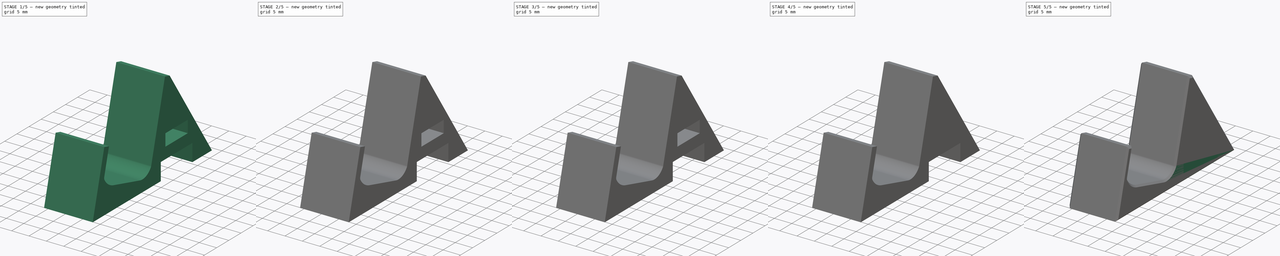
[diagram: build sequence overview — one tinted view per stage of 5, left to right]
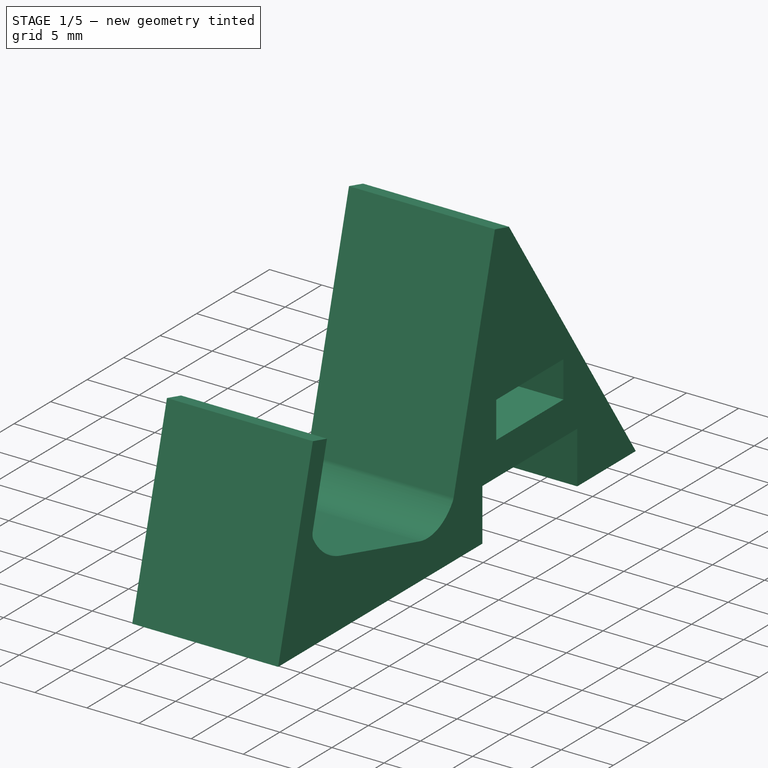
[diagram: stage 1 of 5 — iso view after this stage's code; geometry added in this stage tinted green]
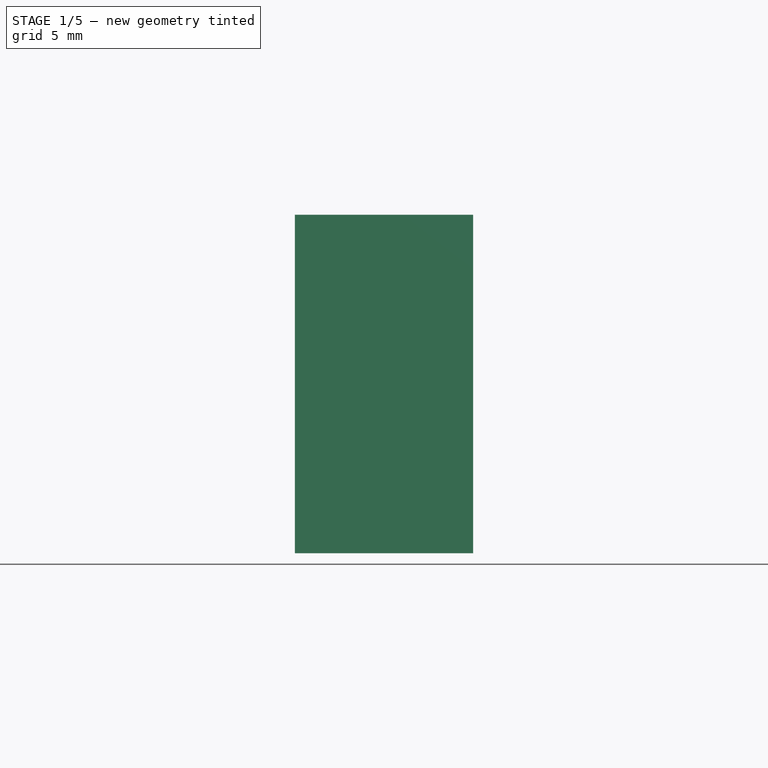
[diagram: stage 1 of 5 — front view after this stage's code; geometry added in this stage tinted green]
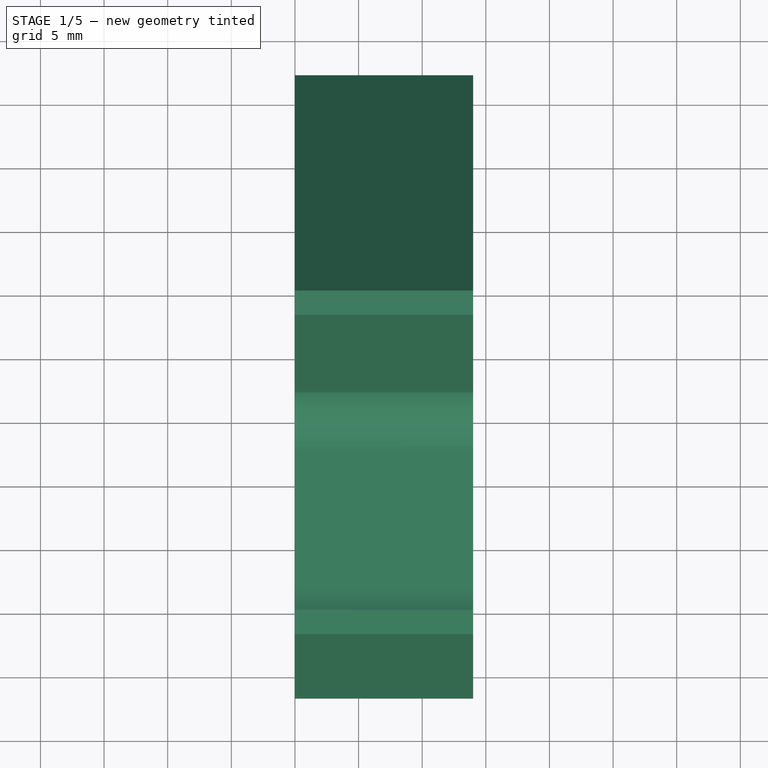
[diagram: stage 1 of 5 — top view after this stage's code; geometry added in this stage tinted green]
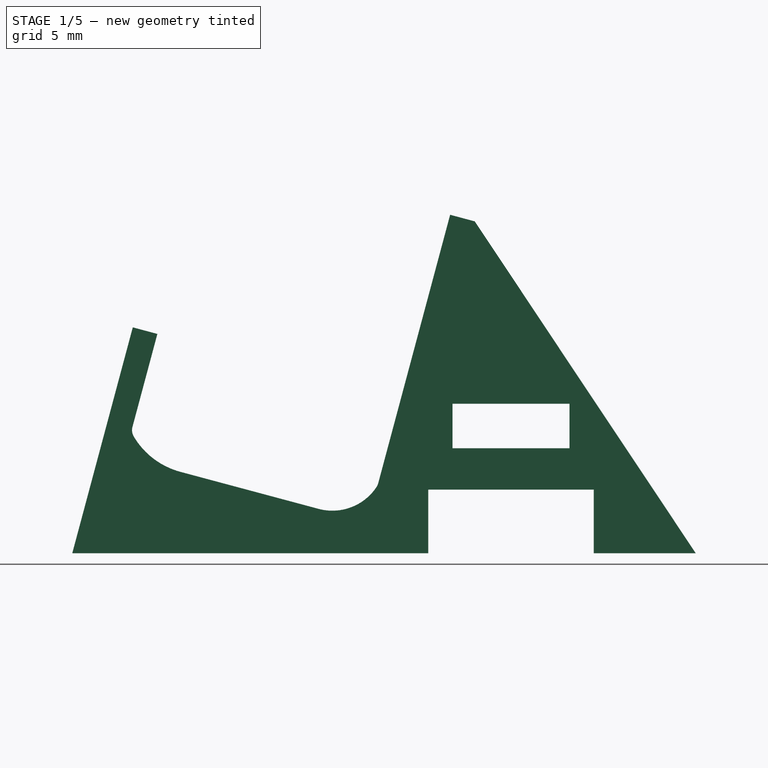
[diagram: stage 1 of 5 — right view after this stage's code; geometry added in this stage tinted green]
FCSTD DOCUMENT  (FreeCAD 1.1R14555 (Git shallow))
Label: PSP Slim Kit
License: All rights reserved
LicenseURL: http://en.wikipedia.org/wiki/All_rights_reserved
objects: Sketcher::SketchObject×15, PartDesign::Pocket×10, PartDesign::Pad×6, App::Point×5, PartDesign::Body×4, Part::Part2DObjectPython×3, PartDesign::FeatureBase×3, PartDesign::Chamfer×3, PartDesign::Fillet×1, Part::DatumPlane×1, PartDesign::Groove×1, PartDesign::SubtractiveHelix×1, App::Part×1
note: 109 computed .brp shape members not serialized (recipe doc carries the construction recipe); baked Part::Feature solids carry a one-line shape summary decoded from their .brp

FEATURE [Sketcher::SketchObject] Sketch004  label="PSP Details"
  ArcFitTolerance = 0
  ExternalTypes = [0]
  FullyConstrained = false
  MakeInternals = false
  Placement = pos=(0.27,39.39,-15) rot=(1,0,0;3.14159rad)
  sketch-geometry (25):
    g0: BSplineCurve PolesCount=2 KnotsCount=2 Degree=1 IsPeriodic=0
    g1: BSplineCurve PolesCount=3 KnotsCount=2 Degree=2 IsPeriodic=0
    g2: BSplineCurve PolesCount=2 KnotsCount=2 Degree=1 IsPeriodic=0
    g3: BSplineCurve PolesCount=3 KnotsCount=2 Degree=2 IsPeriodic=0
    g4: BSplineCurve PolesCount=2 KnotsCount=2 Degree=1 IsPeriodic=0
    g5: BSplineCurve PolesCount=3 KnotsCount=2 Degree=2 IsPeriodic=0
    g6: BSplineCurve PolesCount=2 KnotsCount=2 Degree=1 IsPeriodic=0
    g7: BSplineCurve PolesCount=3 KnotsCount=2 Degree=2 IsPeriodic=0
    g8: BSplineCurve PolesCount=2 KnotsCount=2 Degree=1 IsPeriodic=0
    g9: BSplineCurve PolesCount=3 KnotsCount=2 Degree=2 IsPeriodic=0
    g10: BSplineCurve PolesCount=2 KnotsCount=2 Degree=1 IsPeriodic=0
    g11: BSplineCurve PolesCount=3 KnotsCount=2 Degree=2 IsPeriodic=0
    g12: BSplineCurve PolesCount=2 KnotsCount=2 Degree=1 IsPeriodic=0
    g13: BSplineCurve PolesCount=2 KnotsCount=2 Degree=1 IsPeriodic=0
    g14: BSplineCurve PolesCount=3 KnotsCount=2 Degree=2 IsPeriodic=0
    g15: BSplineCurve PolesCount=2 KnotsCount=2 Degree=1 IsPeriodic=0
    g16: BSplineCurve PolesCount=3 KnotsCount=2 Degree=2 IsPeriodic=0
    g17: BSplineCurve PolesCount=2 KnotsCount=2 Degree=1 IsPeriodic=0
    g18: BSplineCurve PolesCount=3 KnotsCount=2 Degree=2 IsPeriodic=0
    g19: BSplineCurve PolesCount=2 KnotsCount=2 Degree=1 IsPeriodic=0
    g20: BSplineCurve PolesCount=7 KnotsCount=4 Degree=2 IsPeriodic=0
    g21: BSplineCurve PolesCount=2 KnotsCount=2 Degree=1 IsPeriodic=0
    g22: BSplineCurve PolesCount=2 KnotsCount=2 Degree=1 IsPeriodic=0
    g23: BSplineCurve PolesCount=2 KnotsCount=2 Degree=1 IsPeriodic=0
    g24: BSplineCurve PolesCount=2 KnotsCount=2 Degree=1 IsPeriodic=0
  constraints (24):
    c: Coincident(g0,g1)
    c: Coincident(g1,g2)
    c: Coincident(g2,g3)
    c: Coincident(g3,g4)
    c: Coincident(g4,g5)
    c: Coincident(g5,g6)
    c: Coincident(g6,g0)
    c: Coincident(g7,g8)
    c: Coincident(g8,g9)
    c: Coincident(g9,g10)
    c: Coincident(g10,g11)
    c: Coincident(g11,g12)
    c: Coincident(g12,g7)
    c: Coincident(g13,g14)
    c: Coincident(g14,g15)
    c: Coincident(g15,g16)
    c: Coincident(g16,g17)
    c: Coincident(g17,g18)
    c: Coincident(g18,g19)
    c: Coincident(g19,g13)
    c: Coincident(g21,g22)
    c: Coincident(g22,g23)
    c: Coincident(g23,g24)
    c: Coincident(g24,g21)
FEATURE [Sketcher::SketchObject] Sketch003  label="PSP Icon"
  ArcFitTolerance = 0
  ExternalTypes = [0]
  FullyConstrained = false
  MakeInternals = false
  Placement = pos=(0.27,39.39,-15) rot=(1,0,0;3.14159rad)
  sketch-geometry (9):
    g0: BSplineCurve PolesCount=2 KnotsCount=2 Degree=1 IsPeriodic=0
    g1: BSplineCurve PolesCount=3 KnotsCount=2 Degree=2 IsPeriodic=0
    g2: BSplineCurve PolesCount=2 KnotsCount=2 Degree=1 IsPeriodic=0
    g3: BSplineCurve PolesCount=3 KnotsCount=2 Degree=2 IsPeriodic=0
    g4: BSplineCurve PolesCount=2 KnotsCount=2 Degree=1 IsPeriodic=0
    g5: BSplineCurve PolesCount=3 KnotsCount=2 Degree=2 IsPeriodic=0
    g6: BSplineCurve PolesCount=2 KnotsCount=2 Degree=1 IsPeriodic=0
    g7: BSplineCurve PolesCount=3 KnotsCount=2 Degree=2 IsPeriodic=0
    g8: BSplineCurve PolesCount=2 KnotsCount=2 Degree=1 IsPeriodic=0
  constraints (9):
    c: Coincident(g0,g1)
    c: Coincident(g1,g2)
    c: Coincident(g2,g3)
    c: Coincident(g3,g4)
    c: Coincident(g4,g5)
    c: Coincident(g5,g6)
    c: Coincident(g6,g7)
    c: Coincident(g7,g8)
    c: Coincident(g8,g0)
FEATURE [Sketcher::SketchObject] Sketch
  ArcFitTolerance = 0
  AttachmentSupport = -> [YZ_Plane]
  ExternalTypes = [0]
  FullyConstrained = true
  MakeInternals = false
  MapMode = 5
  Placement = pos=(0,0,0) rot=(0.57735,0.57735,0.57735;2.0944rad)
  sketch-geometry (15):
    g0: LineSegment StartX=0 StartY=0 StartZ=0 EndX=0 EndY=12 EndZ=0
    g1: LineSegment StartX=0 StartY=12 StartZ=0 EndX=2 EndY=12 EndZ=0
    g2: LineSegment StartX=2 StartY=12 StartZ=0 EndX=2 EndY=4.04001 EndZ=0
    g3: ArcOfCircle CenterX=6.54995 CenterY=8.094 CenterZ=0 NormalX=0 NormalY=0 NormalZ=1 AngleXU=0 Radius=6.094 StartAngle=3.86941 EndAngle=4.71239
    g4: LineSegment StartX=6.54995 StartY=2 StartZ=0 EndX=17.7999 EndY=2 EndZ=0
    g5: ArcOfCircle CenterX=17.7999 CenterY=6.167 CenterZ=0 NormalX=0 NormalY=0 NormalZ=1 AngleXU=0 Radius=4.167 StartAngle=4.71239 EndAngle=5.99933
    g6: LineSegment StartX=21.8002 StartY=5 StartZ=0 EndX=21.8002 EndY=27 EndZ=0
    g7: LineSegment StartX=21.8002 StartY=27 StartZ=0 EndX=23.8002 EndY=27 EndZ=0
    g8: LineSegment StartX=23.8002 StartY=27 StartZ=0 EndX=23.8002 EndY=0 EndZ=0
    g9: LineSegment StartX=23.8002 StartY=0 StartZ=0 EndX=0 EndY=0 EndZ=0
    g10: LineSegment [constr] StartX=6.54995 StartY=2 StartZ=0 EndX=6.54995 EndY=0 EndZ=0
    g11: LineSegment [constr] StartX=17.7999 StartY=2 StartZ=0 EndX=21.8002 EndY=2 EndZ=0
    g12: LineSegment [constr] StartX=21.8002 StartY=2 StartZ=0 EndX=21.8002 EndY=5 EndZ=0
    g13: LineSegment [constr] StartX=2 StartY=4.04001 StartZ=0 EndX=2 EndY=2.00001 EndZ=0
    g14: LineSegment [constr] StartX=2 StartY=2.00001 StartZ=0 EndX=6.54995 EndY=2 EndZ=0
  constraints (42):
    c: Coincident(g-1,g0)
    c: PointOnObject(g0,g-2)
    c: Coincident(g0,g1)
    c: Horizontal(g1)
    c: Coincident(g1,g2)
    c: Vertical(g2)
    c: Horizontal(g4)
    c: Tangent(g4,g5) = -1.5708
    c: Vertical(g6)
    c: Coincident(g6,g7)
    c: Horizontal(g7)
    c: Coincident(g7,g8)
    c: PointOnObject(g8,g-1)
    c: Vertical(g8)
    c: Coincident(g8,g9)
    c: Coincident(g9,g0)
    c: PointOnObject(g10,g9)
    c: Vertical(g10)
    c: Equal(g1,g10)
    c: Equal(g1,g7)
    c: Distance(g1) = 2
    c: Distance(g2) = 7.96
    c: Distance(g6) = 22
    c: Distance(g4) = 11.25
    c: Tangent(g3,g4) = -1.5708
    c: Coincident(g3,g2)
    c: Radius(g5) = 4.167
    c: Coincident(g5,g6)
    c: Radius(g3) = 6.094
    c: Coincident(g3,g10)
    c: Coincident(g11,g4)
    c: Horizontal(g11)
    c: Coincident(g12,g11)
    c: Coincident(g12,g5)
    c: Vertical(g12)
    c: Distance(g12) = 3
    c: Coincident(g13,g2)
    c: Vertical(g13)
    c: Coincident(g14,g13)
    c: Coincident(g14,g3)
    c: Tangent(g14,g3)
    c: Distance(g13) = 2.04
FEATURE [PartDesign::Pad] Pad
  Direction = (1,0,0)
  Length = 14
  Length2 = 10
  Placement = pos=(0,0,0) rot=(1,1,1;2.0944rad)
  Profile = -> Sketch
  ReferenceAxis = -> Sketch [N_Axis]
  SideType = 0
  Suppressed = false
  Type = 0
  Type2 = 0
FEATURE [Part::Part2DObjectPython] ShapeString  # Draft 2D object (typed FeaturePython)
  FontFile = ../../Font/OpenSans-Regular.ttf
  Fuse = false
  Justification = 6
  JustificationReference = 0
  KeepLeftMargin = true
  MakeFace = true
  ObliqueAngle = 0
  Placement = pos=(12.175,5,6.445) rot=(0,0.707107,0.707107;3.14159rad)
  ScaleToSize = false
  Size = 4
  String = PSPS
  Tracking = 0
FEATURE [Part::Part2DObjectPython] ShapeString001  label="L"  # Draft 2D object (typed FeaturePython)
  FontFile = ../../Font/OpenSans-Regular.ttf
  Fuse = false
  Justification = 6
  JustificationReference = 0
  KeepLeftMargin = true
  MakeFace = true
  ObliqueAngle = 0
  Placement = pos=(3.72,8.22,-16) rot=(1,0,0;3.14159rad)
  ScaleToSize = false
  Size = 10
  String = L
  Tracking = 0
FEATURE [Part::Part2DObjectPython] ShapeString002  label="R"  # Draft 2D object (typed FeaturePython)
  FontFile = ../../Font/OpenSans-Regular.ttf
  Fuse = false
  Justification = 6
  JustificationReference = 0
  KeepLeftMargin = true
  MakeFace = true
  ObliqueAngle = 0
  Placement = pos=(3.15,8.22,-12) rot=(1,0,0;3.14159rad)
  ScaleToSize = false
  Size = 10
  String = R
  Tracking = 0
FEATURE [PartDesign::Pocket] Pocket
  BaseFeature = -> Pad
  Direction = (1e-16,-1,4e-16)
  Length = 0
  Length2 = 5
  Offset = 0.2
  Placement = pos=(0,0,0) rot=(1,1,1;2.0944rad)
  Profile = -> ShapeString
  ReferenceAxis = -> ShapeString [N_Axis]
  SideType = 0
  Suppressed = false
  Type = 3
  Type2 = 0
  UpToFace = -> Pad [Face3]
FEATURE [Sketcher::SketchObject] Sketch006  label="PSP Details001"
  ArcFitTolerance = 0
  ExternalTypes = [0]
  FullyConstrained = false
  MakeInternals = false
  Placement = pos=(0.27,19.38,-15) rot=(1,0,0;3.14159rad)
  sketch-geometry (25):
    g0: BSplineCurve PolesCount=2 KnotsCount=2 Degree=1 IsPeriodic=0
    g1: BSplineCurve PolesCount=3 KnotsCount=2 Degree=2 IsPeriodic=0
    g2: BSplineCurve PolesCount=2 KnotsCount=2 Degree=1 IsPeriodic=0
    g3: BSplineCurve PolesCount=3 KnotsCount=2 Degree=2 IsPeriodic=0
    g4: BSplineCurve PolesCount=2 KnotsCount=2 Degree=1 IsPeriodic=0
    g5: BSplineCurve PolesCount=3 KnotsCount=2 Degree=2 IsPeriodic=0
    g6: BSplineCurve PolesCount=2 KnotsCount=2 Degree=1 IsPeriodic=0
    g7: BSplineCurve PolesCount=3 KnotsCount=2 Degree=2 IsPeriodic=0
    g8: BSplineCurve PolesCount=2 KnotsCount=2 Degree=1 IsPeriodic=0
    g9: BSplineCurve PolesCount=3 KnotsCount=2 Degree=2 IsPeriodic=0
    g10: BSplineCurve PolesCount=2 KnotsCount=2 Degree=1 IsPeriodic=0
    g11: BSplineCurve PolesCount=3 KnotsCount=2 Degree=2 IsPeriodic=0
    g12: BSplineCurve PolesCount=2 KnotsCount=2 Degree=1 IsPeriodic=0
    g13: BSplineCurve PolesCount=2 KnotsCount=2 Degree=1 IsPeriodic=0
    g14: BSplineCurve PolesCount=3 KnotsCount=2 Degree=2 IsPeriodic=0
    g15: BSplineCurve PolesCount=2 KnotsCount=2 Degree=1 IsPeriodic=0
    g16: BSplineCurve PolesCount=3 KnotsCount=2 Degree=2 IsPeriodic=0
    g17: BSplineCurve PolesCount=2 KnotsCount=2 Degree=1 IsPeriodic=0
    g18: BSplineCurve PolesCount=3 KnotsCount=2 Degree=2 IsPeriodic=0
    g19: BSplineCurve PolesCount=2 KnotsCount=2 Degree=1 IsPeriodic=0
    g20: BSplineCurve PolesCount=7 KnotsCount=4 Degree=2 IsPeriodic=0
    g21: BSplineCurve PolesCount=2 KnotsCount=2 Degree=1 IsPeriodic=0
    g22: BSplineCurve PolesCount=2 KnotsCount=2 Degree=1 IsPeriodic=0
    g23: BSplineCurve PolesCount=2 KnotsCount=2 Degree=1 IsPeriodic=0
    g24: BSplineCurve PolesCount=2 KnotsCount=2 Degree=1 IsPeriodic=0
  constraints (24):
    c: Coincident(g0,g1)
    c: Coincident(g1,g2)
    c: Coincident(g2,g3)
    c: Coincident(g3,g4)
    c: Coincident(g4,g5)
    c: Coincident(g5,g6)
    c: Coincident(g6,g0)
    c: Coincident(g7,g8)
    c: Coincident(g8,g9)
    c: Coincident(g9,g10)
    c: Coincident(g10,g11)
    c: Coincident(g11,g12)
    c: Coincident(g12,g7)
    c: Coincident(g13,g14)
    c: Coincident(g14,g15)
    c: Coincident(g15,g16)
    c: Coincident(g16,g17)
    c: Coincident(g17,g18)
    c: Coincident(g18,g19)
    c: Coincident(g19,g13)
    c: Coincident(g21,g22)
    c: Coincident(g22,g23)
    c: Coincident(g23,g24)
    c: Coincident(g24,g21)
FEATURE [Sketcher::SketchObject] Sketch007  label="PSP Icon001"
  ArcFitTolerance = 0
  ExternalTypes = [0]
  FullyConstrained = false
  MakeInternals = false
  Placement = pos=(0.27,19.38,-15) rot=(1,0,0;3.14159rad)
  sketch-geometry (9):
    g0: BSplineCurve PolesCount=2 KnotsCount=2 Degree=1 IsPeriodic=0
    g1: BSplineCurve PolesCount=3 KnotsCount=2 Degree=2 IsPeriodic=0
    g2: BSplineCurve PolesCount=2 KnotsCount=2 Degree=1 IsPeriodic=0
    g3: BSplineCurve PolesCount=3 KnotsCount=2 Degree=2 IsPeriodic=0
    g4: BSplineCurve PolesCount=2 KnotsCount=2 Degree=1 IsPeriodic=0
    g5: BSplineCurve PolesCount=3 KnotsCount=2 Degree=2 IsPeriodic=0
    g6: BSplineCurve PolesCount=2 KnotsCount=2 Degree=1 IsPeriodic=0
    g7: BSplineCurve PolesCount=3 KnotsCount=2 Degree=2 IsPeriodic=0
    g8: BSplineCurve PolesCount=2 KnotsCount=2 Degree=1 IsPeriodic=0
  constraints (9):
    c: Coincident(g0,g1)
    c: Coincident(g1,g2)
    c: Coincident(g2,g3)
    c: Coincident(g3,g4)
    c: Coincident(g4,g5)
    c: Coincident(g5,g6)
    c: Coincident(g6,g7)
    c: Coincident(g7,g8)
    c: Coincident(g8,g0)
FEATURE [PartDesign::Fillet] Fillet
  Base = -> Pocket [Edge123,Edge26]
  BaseFeature = -> Pocket
  Placement = pos=(0,0,0) rot=(1,1,1;2.0944rad)
  Radius = 1
  SupportTransform = false
  Suppressed = false
  UseAllEdges = false
FEATURE [PartDesign::Body] Body  label="Profile"
  AllowCompound = false
  Group = -> [Sketch,Pad,ShapeString,Pocket,Fillet]
  Origin = -> Origin
  Tip = -> Fillet
FEATURE [PartDesign::FeatureBase] Clone
  BaseFeature = -> Body
  Placement = pos=(0,0,0) rot=(-1,0,0;0.261799rad)
  Suppressed = false
FEATURE [Sketcher::SketchObject] Sketch005
  ArcFitTolerance = 0
  AttachmentSupport = -> [Clone]
  ExternalGeometry = -> [Clone]
  ExternalTypes = [0]
  FullyConstrained = true
  MakeInternals = false
  MapMode = 5
  Placement = pos=(14,-6.4e-15,1e-16) rot=(0.519988,0.677661,0.519988;1.95044rad)
  sketch-geometry (19):
    g0: LineSegment StartX=23.8002 StartY=27 StartZ=0 EndX=47.3262 EndY=6.30378 EndZ=0
    g1: LineSegment StartX=47.3262 StartY=6.30378 StartZ=0 EndX=39.5832 EndY=4.22904 EndZ=0
    g2: LineSegment StartX=39.5832 StartY=4.22904 StartZ=0 EndX=38.2891 EndY=9.05867 EndZ=0
    g3: LineSegment StartX=38.2891 StartY=9.05867 StartZ=0 EndX=25.732 EndY=5.69402 EndZ=0
    g4: LineSegment StartX=25.732 StartY=5.69402 StartZ=0 EndX=27.0261 EndY=0.86439 EndZ=0
    g5: LineSegment StartX=27.0261 StartY=0.86439 StartZ=0 EndX=0 EndY=-6.37724 EndZ=0
    g6: LineSegment StartX=0 StartY=-6.37724 StartZ=0 EndX=6.3e-15 EndY=2 EndZ=0
    g7: LineSegment StartX=6.3e-15 StartY=2 StartZ=0 EndX=23.8002 EndY=2 EndZ=0
    g8: LineSegment StartX=23.8002 StartY=2 StartZ=0 EndX=23.8002 EndY=27 EndZ=0
    g9: LineSegment StartX=26.7261 StartY=9.32503 StartZ=0 EndX=35.6127 EndY=11.7062 EndZ=0
    g10: LineSegment StartX=35.6127 StartY=11.7062 StartZ=0 EndX=34.7068 EndY=15.0869 EndZ=0
    g11: LineSegment StartX=34.7068 StartY=15.0869 StartZ=0 EndX=25.8203 EndY=12.7058 EndZ=0
    g12: LineSegment StartX=25.8203 StartY=12.7058 StartZ=0 EndX=26.7261 EndY=9.32503 EndZ=0
    g13: LineSegment [constr] StartX=31.1694 StartY=10.5156 StartZ=0 EndX=32.0106 EndY=7.37634 EndZ=0
    g14: LineSegment [constr] StartX=25.732 StartY=5.69402 StartZ=0 EndX=23.8002 EndY=5.17638 EndZ=0
    g15: LineSegment [constr] StartX=38.2891 StartY=9.05867 StartZ=0 EndX=42.8159 EndY=10.2716 EndZ=0
    g16: LineSegment [constr] StartX=27.0261 StartY=0.86439 StartZ=0 EndX=39.5832 EndY=4.22904 EndZ=0
    g17: LineSegment [constr] StartX=34.7068 StartY=15.0869 StartZ=0 EndX=36.7269 EndY=15.6282 EndZ=0
    g18: LineSegment [constr] StartX=25.8203 StartY=12.7058 StartZ=0 EndX=23.8002 EndY=12.1645 EndZ=0
  constraints (54):
    c: Coincident(g0,g1)
    c: Coincident(g1,g2)
    c: Coincident(g2,g3)
    c: Coincident(g3,g4)
    c: Coincident(g4,g5)
    c: PointOnObject(g5,g-2)
    c: Coincident(g5,g6)
    c: Coincident(g6,g7)
    c: Horizontal(g7)
    c: Coincident(g7,g8)
    c: Coincident(g8,g0)
    c: Coincident(g9,g10)
    c: Coincident(g10,g11)
    c: Coincident(g11,g12)
    c: Coincident(g12,g9)
    c: Coincident(g14,g3)
    c: PointOnObject(g14,g8)
    c: Coincident(g15,g2)
    c: PointOnObject(g15,g0)
    c: Coincident(g16,g4)
    c: Coincident(g16,g1)
    c: Coincident(g17,g10)
    c: PointOnObject(g17,g0)
    c: Coincident(g18,g11)
    c: PointOnObject(g18,g8)
    c: Angle(g5,g6) = 1.309
    c: Parallel(g5,g16)
    c: Parallel(g16,g3)
    c: Parallel(g1,g16)
    c: Parallel(g9,g11)
    c: Parallel(g9,g3)
    c: Parallel(g3,g14)
    c: Parallel(g15,g3)
    c: Parallel(g11,g17)
    c: Parallel(g18,g11)
    c: Perpendicular(g9,g12)
    c: Perpendicular(g10,g9)
    c: Perpendicular(g3,g13)
    c: Perpendicular(g4,g5)
    c: Perpendicular(g2,g16)
    c: Symmetric(g3,g2,g13)
    c: Symmetric(g9,g9,g13)
    c: Distance(g3) = 13
    c: Distance(g2) = 5
    c: Distance(g13) = 3.25
    c: Distance(g10) = 3.5
    c: Distance(g11) = 9.2
    c: Equal(g17,g18)
    c: Distance(g14) = 2
    c: PointOnObject(g6,g-5)
    c: PointOnObject(g-4,g7)
    c: PointOnObject(g-3,g5)
    c: Coincident(g0,g-3)
    c: PointOnObject(g7,g-3)
FEATURE [PartDesign::Pad] Pad001
  BaseFeature = -> Clone
  Direction = (1,-1e-16,1e-16)
  Length = 14
  Length2 = 10
  Placement = pos=(0,0,0) rot=(-1,0,0;0.261799rad)
  Profile = -> Sketch005
  ReferenceAxis = -> Sketch005 [N_Axis]
  Refine = true
  Reversed = true
  SideType = 0
  Suppressed = false
  Type = 0
  Type2 = 0
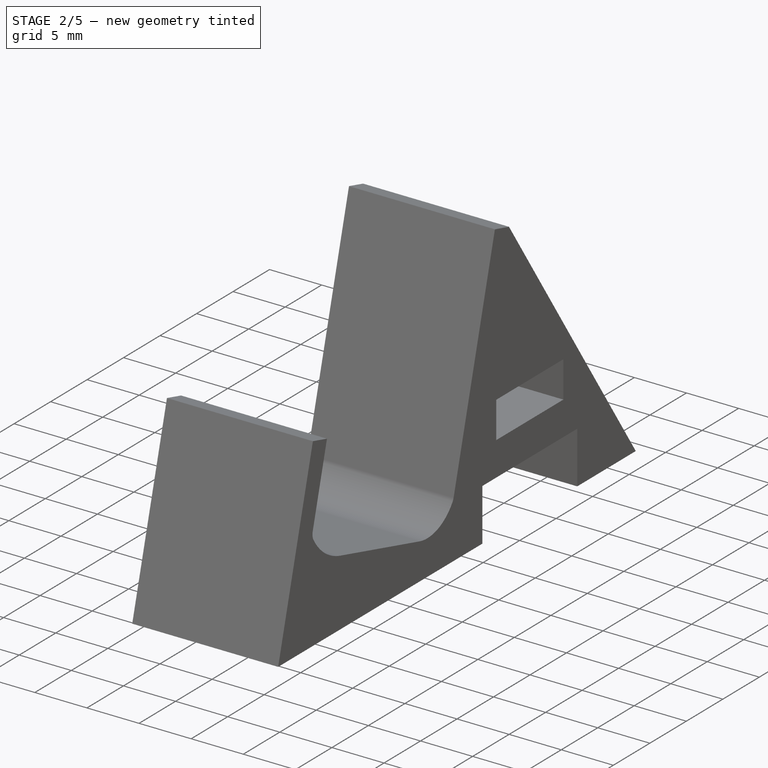
[diagram: stage 2 of 5 — iso view after this stage's code; geometry added in this stage tinted green]
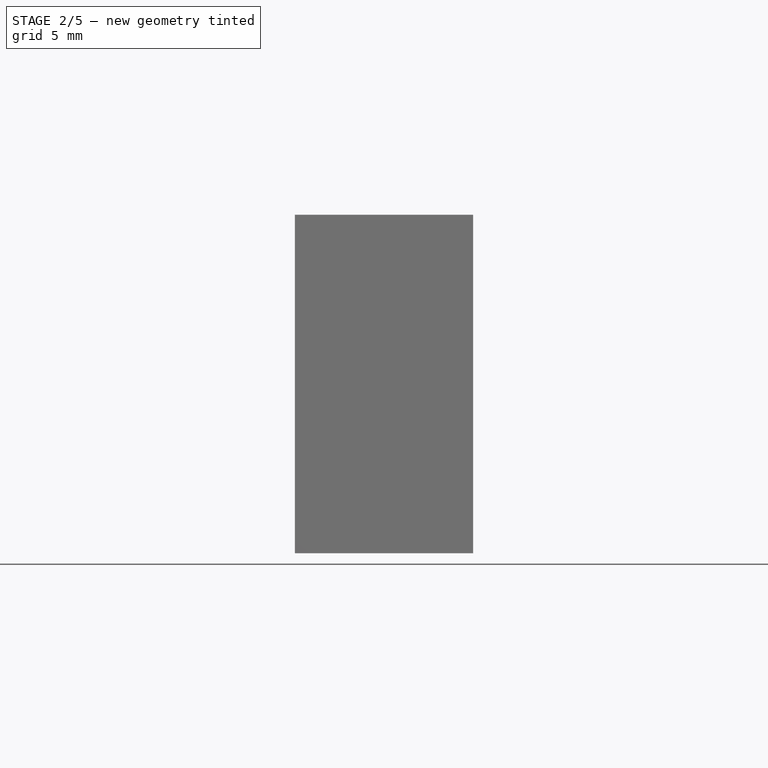
[diagram: stage 2 of 5 — front view after this stage's code; geometry added in this stage tinted green]
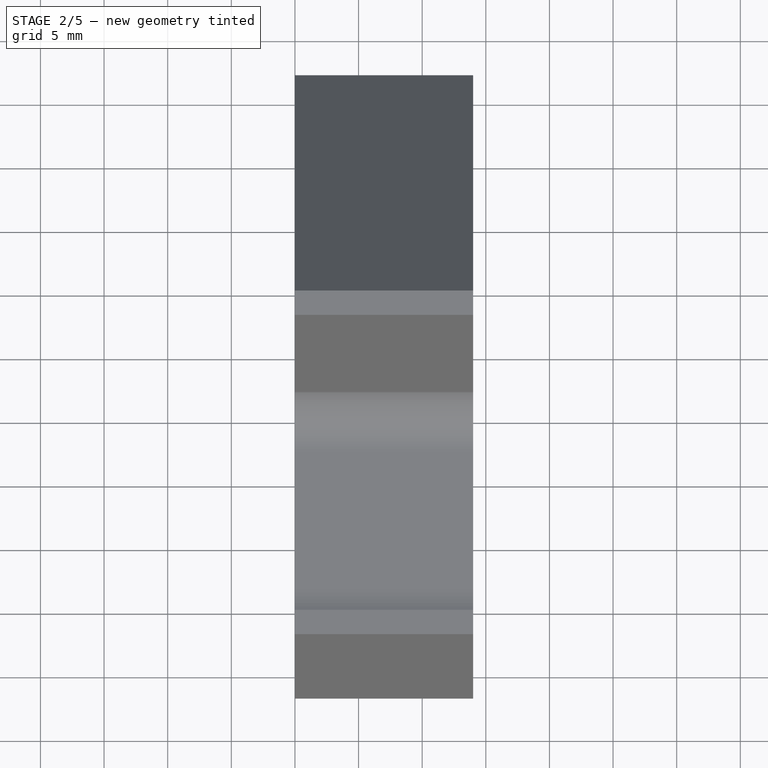
[diagram: stage 2 of 5 — top view after this stage's code; geometry added in this stage tinted green]
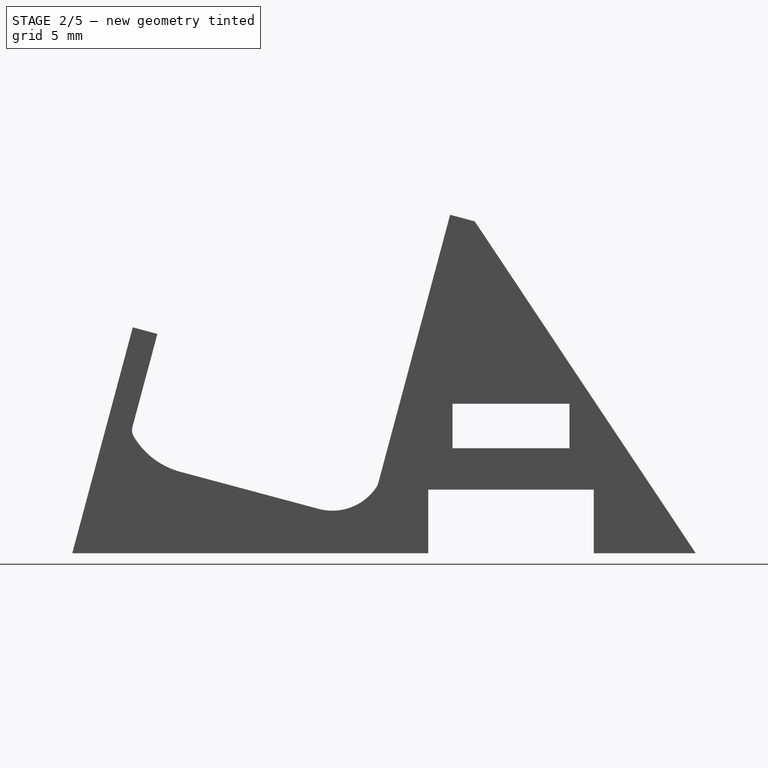
[diagram: stage 2 of 5 — right view after this stage's code; geometry added in this stage tinted green]
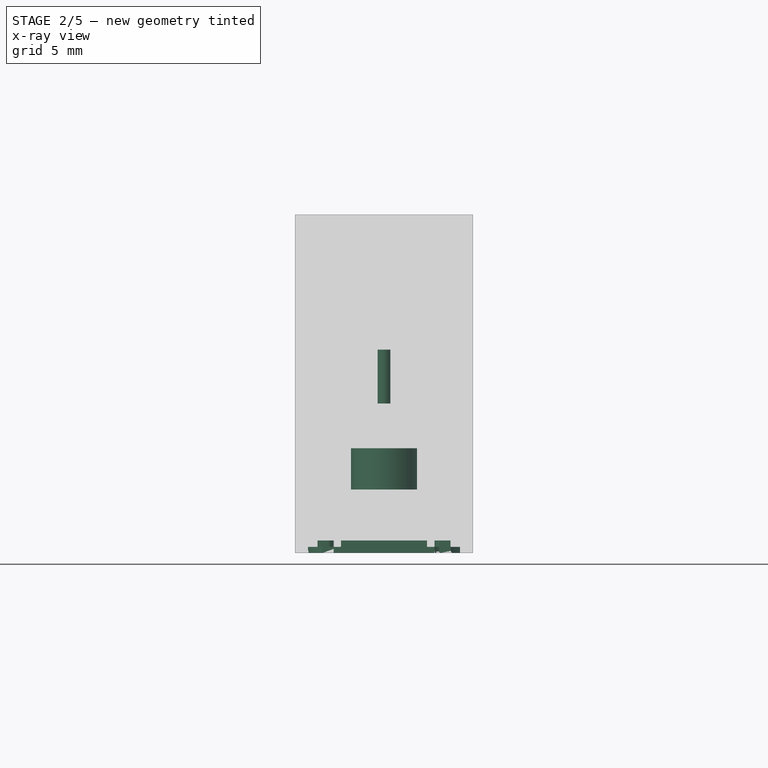
[diagram: stage 2 of 5 — x-ray composite at the front view; earlier geometry ghosted, this stage's added geometry solid]
FEATURE [PartDesign::FeatureBase] Clone001
  BaseFeature = -> Pad001
  Placement = pos=(0,0,0) rot=(-1,0,0;0.261799rad)
  Suppressed = false
FEATURE [Sketcher::SketchObject] Sketch009
  ArcFitTolerance = 0
  AttachmentSupport = -> [Clone001]
  ExternalGeometry = -> [Clone001]
  ExternalTypes = [0]
  FullyConstrained = true
  MakeInternals = false
  MapMode = 5
  Placement = pos=(1e-16,-1e-15,-1.15994) rot=(1,0,0;3.14159rad)
  sketch-geometry (1):
    g0: Circle CenterX=7 CenterY=-32.829 CenterZ=0 NormalX=0 NormalY=0 NormalZ=1 AngleXU=0 Radius=0.5
  constraints (2):
    c: Symmetric(g-3,g-4,g0)
    c: Diameter(g0) = 1
FEATURE [PartDesign::Pocket] Pocket003
  BaseFeature = -> Clone001
  Direction = (0,0,1)
  Length = 11
  Length2 = 5
  Placement = pos=(0,0,0) rot=(-1,0,0;0.261799rad)
  Profile = -> Sketch009
  ReferenceAxis = -> Sketch009 [N_Axis]
  SideType = 0
  Suppressed = false
  Type = 0
  Type2 = 0
FEATURE [PartDesign::Pocket] Pocket004
  BaseFeature = -> Pocket003
  Direction = (0,1e-16,1)
  Length = 0
  Length2 = 5
  Offset = 0.5
  Placement = pos=(0,0,0) rot=(-1,0,0;0.261799rad)
  Profile = -> Sketch007
  ReferenceAxis = -> Sketch007 [N_Axis]
  SideType = 0
  Suppressed = false
  Type = 3
  Type2 = 0
  UpToFace = -> Pocket003 [Face16]
FEATURE [PartDesign::Pocket] Pocket005
  BaseFeature = -> Pocket004
  Direction = (0,1e-16,1)
  Length = 0
  Length2 = 5
  Offset = 0.5
  Placement = pos=(0,0,0) rot=(-1,0,0;0.261799rad)
  Profile = -> Sketch006
  ReferenceAxis = -> Sketch006 [N_Axis]
  Refine = true
  SideType = 0
  Suppressed = false
  Type = 3
  Type2 = 0
  UpToFace = -> Pocket004 [Face131]
FEATURE [PartDesign::Body] Body001  label="Stand"
  AllowCompound = false
  Group = -> [Clone,Sketch005,Pad001,Sketch004,Sketch003,Sketch008,Pad002,Pocket001,Pocket002,Chamfer]
  Origin = -> Origin001
  Placement = pos=(50,0,0) rot=(0,0,1;0rad)
  Tip = -> Chamfer
FEATURE [Sketcher::SketchObject] Sketch012
  ArcFitTolerance = 1e-06
  AttachmentSupport = -> [Pocket005]
  ExternalGeometry = -> [Pocket005]
  ExternalTypes = [0]
  FullyConstrained = true
  MakeInternals = false
  MapMode = 5
  Placement = pos=(1e-16,-1e-15,-1.15994) rot=(1,0,0;3.14159rad)
  sketch-geometry (1):
    g0: Circle CenterX=7 CenterY=-32.829 CenterZ=0 NormalX=0 NormalY=0 NormalZ=1 AngleXU=0 Radius=2.6
  constraints (2):
    c: Diameter(g0) = 5.2
    c: Coincident(g0,g-3)
FEATURE [PartDesign::Pocket] Pocket008
  BaseFeature = -> Pocket005
  Direction = (0,0,1)
  Length = 5
  Length2 = 5
  Placement = pos=(0,0,0) rot=(-1,0,0;0.261799rad)
  Profile = -> Sketch012
  ReferenceAxis = -> Sketch012 [N_Axis]
  Refine = true
  SideType = 0
  Suppressed = false
  Type = 0
  Type2 = 0
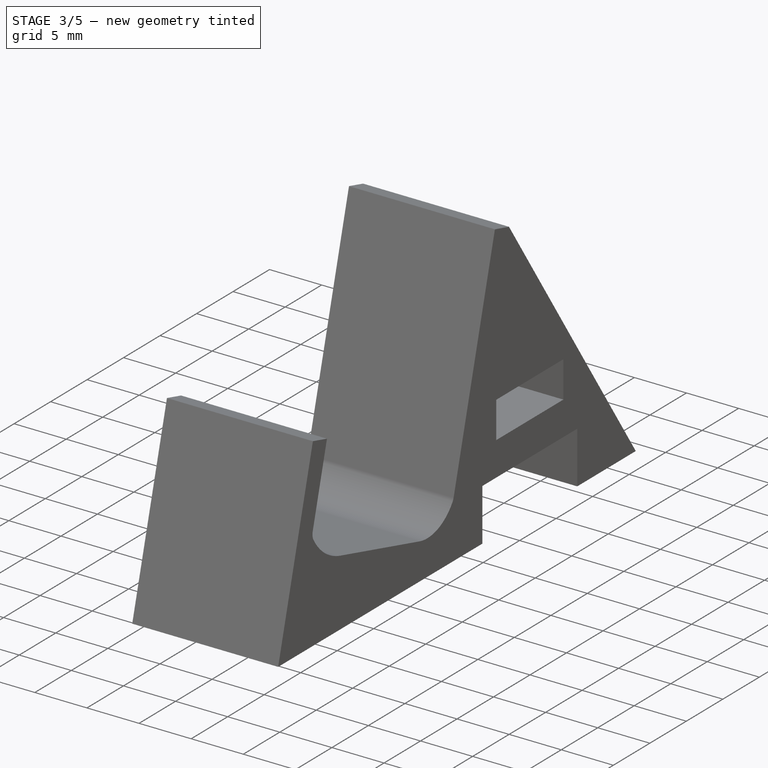
[diagram: stage 3 of 5 — iso view after this stage's code; geometry added in this stage tinted green]
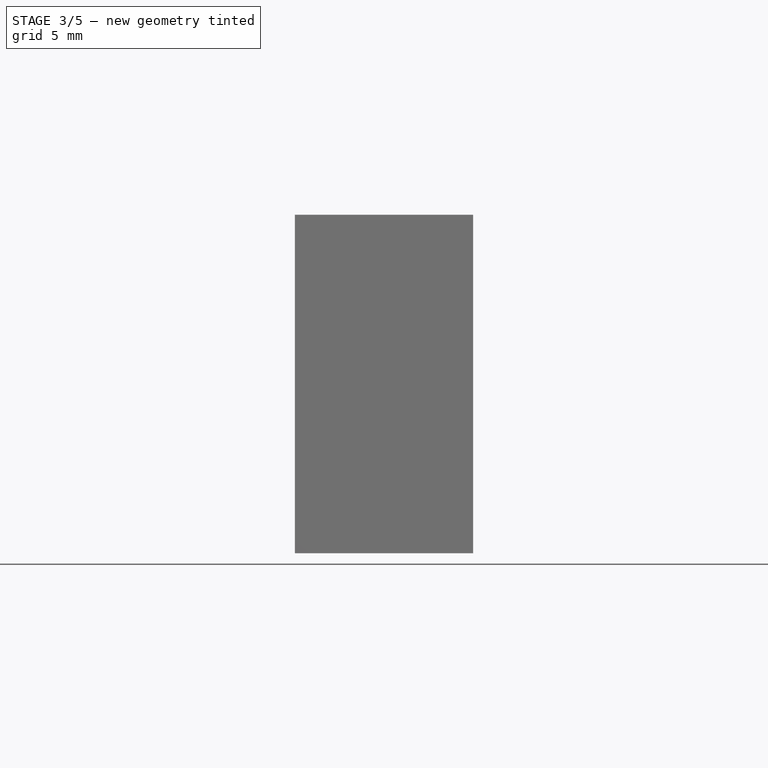
[diagram: stage 3 of 5 — front view after this stage's code; geometry added in this stage tinted green]
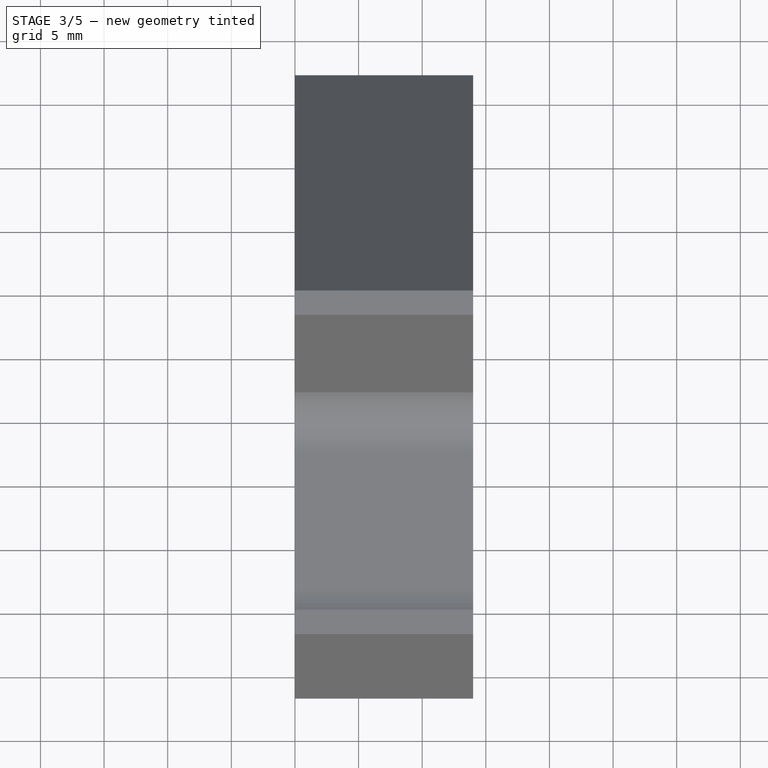
[diagram: stage 3 of 5 — top view after this stage's code; geometry added in this stage tinted green]
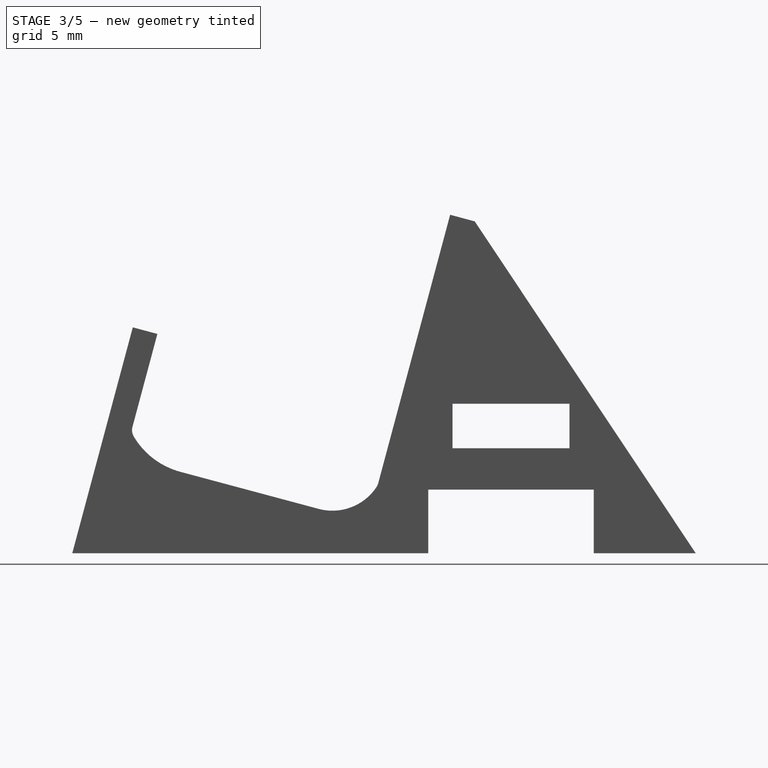
[diagram: stage 3 of 5 — right view after this stage's code; geometry added in this stage tinted green]
FEATURE [Part::DatumPlane] DatumPlane
  AttachmentOffset = pos=(0,0,0) rot=(1,0,0;1.5708rad)
  AttachmentSupport = -> [Pocket008]
  MapMode = 45
  Placement = pos=(7,32.829,5.61597) rot=(0.57735,0.57735,0.57735;2.0944rad)
FEATURE [Sketcher::SketchObject] Sketch013
  ArcFitTolerance = 1e-06
  AttachmentSupport = -> [DatumPlane]
  ExternalGeometry = -> [Pocket008]
  ExternalTypes = [0]
  FullyConstrained = true
  MakeInternals = false
  MapMode = 5
  Placement = pos=(7,32.829,5.61597) rot=(0.57735,0.57735,0.57735;2.0944rad)
  sketch-geometry (9):
    g0: LineSegment [constr] StartX=0 StartY=4.22408 StartZ=0 EndX=0 EndY=5.82408 EndZ=0
    g1: LineSegment [constr] StartX=0 StartY=4.22408 StartZ=0 EndX=2.2 EndY=4.22408 EndZ=0
    g2: LineSegment [constr] StartX=0 StartY=5.82408 StartZ=0 EndX=2.2 EndY=5.82408 EndZ=0
    g3: LineSegment [constr] StartX=2.2 StartY=4.22408 StartZ=0 EndX=2.2 EndY=4.72408 EndZ=0
    g4: LineSegment StartX=2.2 StartY=5.82408 StartZ=0 EndX=2.2 EndY=4.72408 EndZ=0
    g5: LineSegment StartX=2.2 StartY=4.72408 StartZ=0 EndX=2.6 EndY=5.12408 EndZ=0
    g6: LineSegment StartX=2.6 StartY=5.12408 StartZ=0 EndX=2.6 EndY=5.42408 EndZ=0
    g7: LineSegment StartX=2.6 StartY=5.42408 StartZ=0 EndX=2.2 EndY=5.82408 EndZ=0
    g8: LineSegment [constr] StartX=2.6 StartY=5.42408 StartZ=0 EndX=0 EndY=5.42408 EndZ=0
  constraints (25):
    c: Distance(g0) = 1.6
    c: Symmetric(g-3,g-3,g0)
    c: PointOnObject(g0,g-2)
    c: Coincident(g1,g0)
    c: Horizontal(g1)
    c: Coincident(g2,g0)
    c: Horizontal(g2)
    c: Distance(g3) = 0.5
    c: Coincident(g3,g1)
    c: Vertical(g3)
    c: Coincident(g4,g2)
    c: Coincident(g4,g3)
    c: Coincident(g5,g3)
    c: Distance(g6) = 0.3
    c: Coincident(g6,g5)
    c: Coincident(g7,g6)
    c: Coincident(g7,g2)
    c: Vertical(g4)
    c: Vertical(g6)
    c: Equal(g7,g5)
    c: Distance(g8) = 2.6
    c: Coincident(g8,g6)
    c: PointOnObject(g8,g0)
    c: Horizontal(g8)
    c: DistanceX(g7,g7) = 0.4
FEATURE [Sketcher::SketchObject] Sketch014
  ArcFitTolerance = 1e-06
  AttachmentSupport = -> [DatumPlane]
  ExternalGeometry = -> [Pocket008,Sketch013]
  ExternalTypes = [0,0]
  FullyConstrained = true
  MakeInternals = false
  MapMode = 5
  Placement = pos=(7,32.829,5.61597) rot=(0.57735,0.57735,0.57735;2.0944rad)
  sketch-geometry (5):
    g0: LineSegment StartX=-1.42e-14 StartY=-0.0259157 StartZ=0 EndX=0 EndY=0.474084 EndZ=0
    g1: LineSegment StartX=0 StartY=0.474084 StartZ=0 EndX=2.6 EndY=0.474084 EndZ=0
    g2: LineSegment StartX=2.6 StartY=0.474084 StartZ=0 EndX=3.1 EndY=-0.0259157 EndZ=0
    g3: LineSegment StartX=3.1 StartY=-0.0259157 StartZ=0 EndX=-1.42e-14 EndY=-0.0259157 EndZ=0
    g4: LineSegment [constr] StartX=2.6 StartY=5.12408 StartZ=0 EndX=2.6 EndY=0.474084 EndZ=0
  constraints (13):
    c: Distance(g0) = 0.5
    c: Coincident(g1,g0)
    c: Horizontal(g1)
    c: Coincident(g2,g1)
    c: Coincident(g3,g2)
    c: Coincident(g3,g0)
    c: Horizontal(g3)
    c: DistanceX(g2,g2) = 0.5
    c: Coincident(g4,g-4)
    c: Coincident(g4,g1)
    c: Vertical(g4)
    c: Symmetric(g-3,g-3,g0)
    c: PointOnObject(g0,g-2)
FEATURE [Sketcher::SketchObject] Sketch015
  ArcFitTolerance = 1e-06
  AttachmentSupport = -> [Pocket008]
  ExternalGeometry = -> [Pocket008,Sketch013]
  ExternalTypes = [0,0]
  FullyConstrained = true
  MakeInternals = false
  MapMode = 5
  Placement = pos=(0,0,9.84006) rot=(1,0,0;3.14159rad)
  sketch-geometry (1):
    g0: Circle CenterX=7 CenterY=-32.829 CenterZ=0 NormalX=0 NormalY=0 NormalZ=1 AngleXU=0 Radius=2.2
  constraints (2):
    c: Coincident(g0,g-3)
    c: PointOnObject(g-4,g0)
FEATURE [Sketcher::SketchObject] Sketch016
  ArcFitTolerance = 1e-06
  AttachmentSupport = -> [Pocket008]
  ExternalGeometry = -> [Pocket008,Sketch013]
  ExternalTypes = [0,0]
  FullyConstrained = true
  MakeInternals = false
  MapMode = 5
  Placement = pos=(0,0,9.84006) rot=(1,0,0;3.14159rad)
  sketch-geometry (1):
    g0: Circle CenterX=7 CenterY=-32.829 CenterZ=0 NormalX=0 NormalY=0 NormalZ=1 AngleXU=0 Radius=2.6
  constraints (2):
    c: Coincident(g0,g-3)
    c: PointOnObject(g-4,g0)
FEATURE [PartDesign::Groove] Groove
  Angle = 360
  Angle2 = 60
  Axis = (1e-16,-3.9e-15,1)
  Base = (7,32.829,5.61597)
  BaseFeature = -> Pocket008
  Placement = pos=(0,0,0) rot=(-1,0,0;0.261799rad)
  Profile = -> Sketch014
  ReferenceAxis = -> Sketch014 [V_Axis]
  Refine = true
  Suppressed = false
  Type = 0
FEATURE [PartDesign::Pocket] Pocket009
  BaseFeature = -> Groove
  Direction = (0,0,1)
  Length = 8
  Length2 = 5
  Placement = pos=(0,0,0) rot=(-1,0,0;0.261799rad)
  Profile = -> Sketch015
  ReferenceAxis = -> Sketch015 [N_Axis]
  Refine = true
  Reversed = true
  SideType = 0
  Suppressed = false
  Type = 0
  Type2 = 0
FEATURE [PartDesign::SubtractiveHelix] SubtractiveHelix
  Angle = 0
  Axis = (1e-16,-3.9e-15,1)
  Base = (7,32.829,5.61597)
  BaseFeature = -> Pocket009
  Growth = 0
  HasBeenEdited = true
  Height = 8
  LeftHanded = false
  Mode = 0
  Outside = false
  Pitch = 1.6
  Placement = pos=(0,0,0) rot=(-1,0,0;0.261799rad)
  Profile = -> Sketch013
  ReferenceAxis = -> Sketch013 [V_Axis]
  Refine = true
  Reversed = true
  Suppressed = false
  Tolerance = 0.1
  Turns = 5
FEATURE [PartDesign::Pad] Pad005
  BaseFeature = -> SubtractiveHelix
  Direction = (0,0,-1)
  Length = 1.6
  Length2 = 10
  Placement = pos=(0,0,0) rot=(-1,0,0;0.261799rad)
  Profile = -> Sketch016
  ReferenceAxis = -> Sketch016 [N_Axis]
  Refine = true
  Reversed = true
  SideType = 0
  Suppressed = false
  Type = 0
  Type2 = 0
FEATURE [PartDesign::FeatureBase] Clone002
  BaseFeature = -> Pad005
  Placement = pos=(0,0,0) rot=(-1,0,0;0.261799rad)
  Suppressed = false
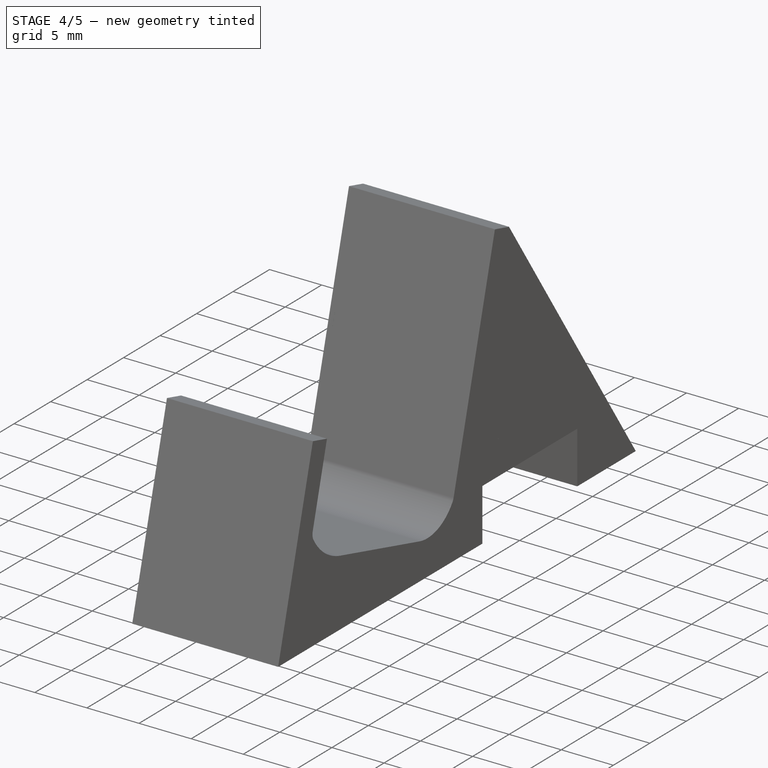
[diagram: stage 4 of 5 — iso view after this stage's code; geometry added in this stage tinted green]
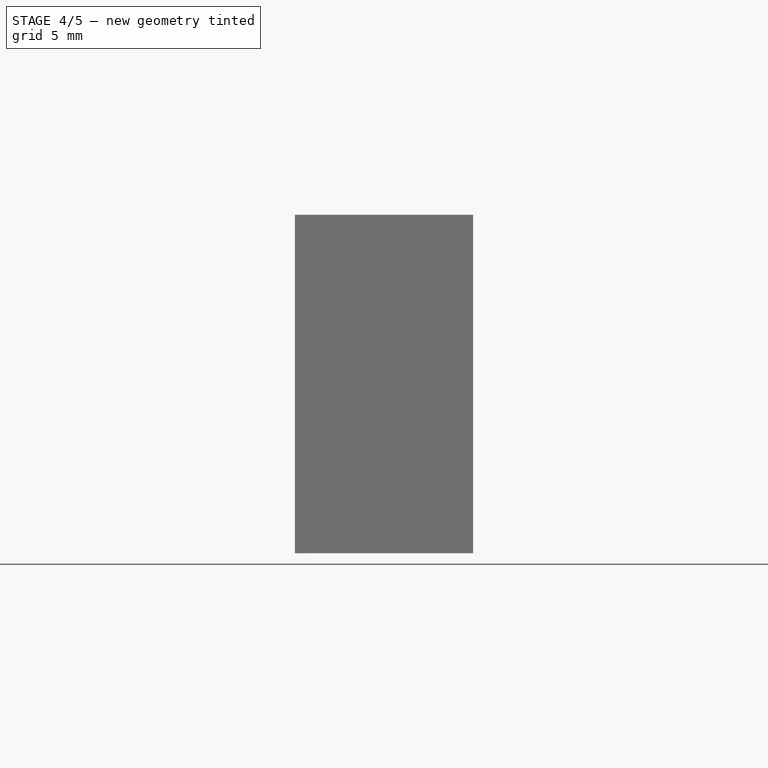
[diagram: stage 4 of 5 — front view after this stage's code; geometry added in this stage tinted green]
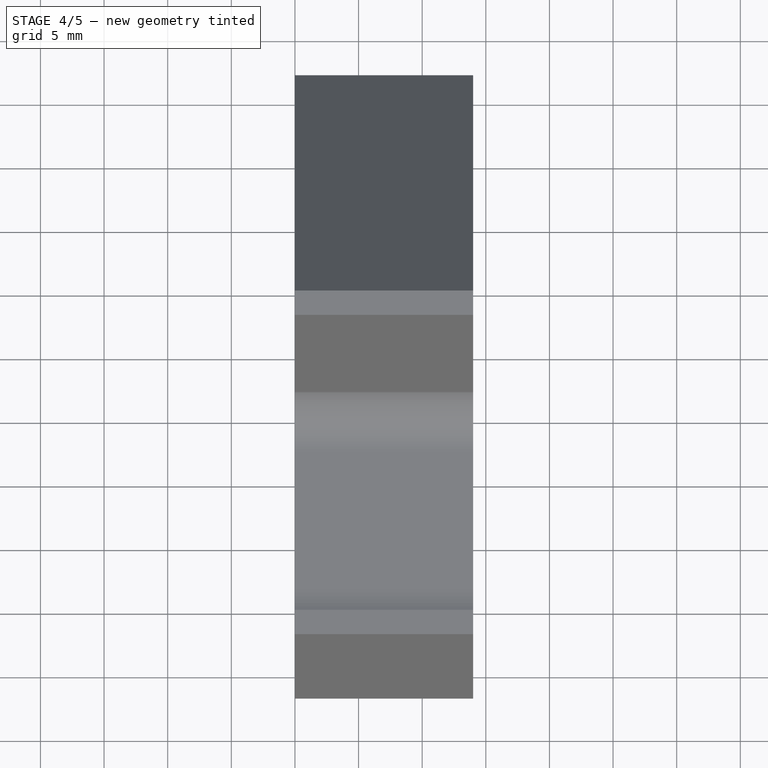
[diagram: stage 4 of 5 — top view after this stage's code; geometry added in this stage tinted green]
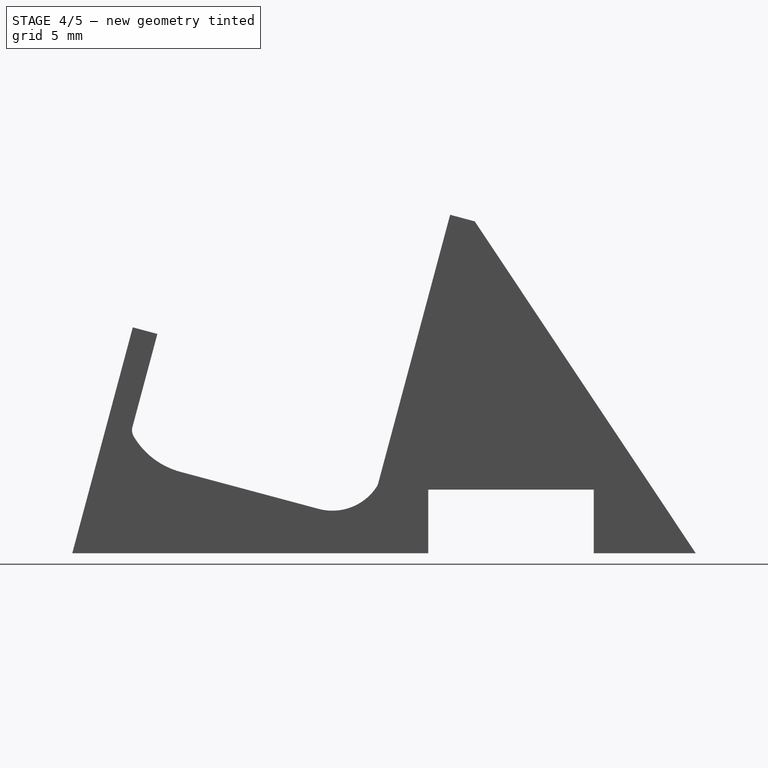
[diagram: stage 4 of 5 — right view after this stage's code; geometry added in this stage tinted green]
FEATURE [Sketcher::SketchObject] Sketch011
  ArcFitTolerance = 0
  AttachmentSupport = -> [Clone002]
  ExternalGeometry = -> [Clone002]
  ExternalTypes = [0]
  FullyConstrained = true
  MakeInternals = false
  MapMode = 5
  Placement = pos=(14,8e-16,3.2e-15) rot=(0.519988,0.677661,0.519988;1.95044rad)
  sketch-geometry (4):
    g0: LineSegment StartX=25.8203 StartY=12.7058 StartZ=0 EndX=34.7068 EndY=15.0869 EndZ=0
    g1: LineSegment StartX=34.7068 StartY=15.0869 StartZ=0 EndX=35.6127 EndY=11.7062 EndZ=0
    g2: LineSegment StartX=35.6127 StartY=11.7062 StartZ=0 EndX=26.7261 EndY=9.32503 EndZ=0
    g3: LineSegment StartX=26.7261 StartY=9.32503 StartZ=0 EndX=25.8203 EndY=12.7058 EndZ=0
  constraints (8):
    c: Coincident(g-3,g0)
    c: Coincident(g0,g-4)
    c: Coincident(g0,g1)
    c: Coincident(g1,g-4)
    c: Coincident(g1,g2)
    c: Coincident(g2,g-3)
    c: Coincident(g2,g3)
    c: Coincident(g3,g0)
FEATURE [PartDesign::Pad] Pad004
  BaseFeature = -> Clone002
  Direction = (1,-1e-16,1e-16)
  Length = 2
  Length2 = 10
  Placement = pos=(0,0,0) rot=(-1,0,0;0.261799rad)
  Profile = -> Sketch011
  ReferenceAxis = -> Sketch011 [N_Axis]
  Refine = true
  Reversed = true
  SideType = 0
  Suppressed = false
  Type = 0
  Type2 = 0
FEATURE [PartDesign::Pocket] Pocket007
  BaseFeature = -> Pad004
  Direction = (0,1e-16,1)
  Length = 0
  Length2 = 5
  Offset = 0.5
  Placement = pos=(0,0,0) rot=(-1,0,0;0.261799rad)
  Profile = -> ShapeString002
  ReferenceAxis = -> ShapeString002 [N_Axis]
  SideType = 0
  Suppressed = false
  Type = 3
  Type2 = 0
  UpToFace = -> Pad004 [Face15]
FEATURE [PartDesign::Pad] Pad006
  BaseFeature = -> Pad005
  Direction = (-1,0,0)
  Length = 2
  Length2 = 10
  Placement = pos=(0,0,0) rot=(-1,0,0;0.261799rad)
  Profile = -> Sketch010
  ReferenceAxis = -> Sketch010 [N_Axis]
  Refine = true
  Reversed = true
  SideType = 0
  Suppressed = false
  Type = 0
  Type2 = 0
FEATURE [PartDesign::Pocket] Pocket010
  BaseFeature = -> Pad006
  Direction = (0,1e-16,1)
  Length = 5
  Length2 = 5
  Offset = 0.5
  Placement = pos=(0,0,0) rot=(-1,0,0;0.261799rad)
  Profile = -> ShapeString001
  ReferenceAxis = -> ShapeString001 [N_Axis]
  Refine = true
  SideType = 0
  Suppressed = false
  Type = 3
  Type2 = 0
  UpToFace = -> Pad006 [Face15]
FEATURE [PartDesign::Body] Body002  label="Kit Left"
  AllowCompound = false
  Group = -> [Clone001,Sketch006,Sketch007,ShapeString001,Sketch009,Pocket003,Pocket004,Pocket005,Sketch010,Sketch012,Pocket008,DatumPlane,Sketch013,Sketch014,Sketch015,Sketch016,Groove,Pocket009,SubtractiveHelix,Pad005,Pad006,Pocket010,Chamfer001]
  Origin = -> Origin003
  Placement = pos=(100,0,0) rot=(0,0,1;0rad)
  Tip = -> Chamfer001
FEATURE [PartDesign::Chamfer] Chamfer002
  Angle = 45
  Base = -> Pocket007 [Face2,Face5]
  BaseFeature = -> Pocket007
  ChamferType = 0
  FlipDirection = false
  Placement = pos=(0,0,0) rot=(-1,0,0;0.261799rad)
  Refine = true
  Size = 0.5
  Size2 = 1
  SupportTransform = false
  Suppressed = false
  UseAllEdges = false
FEATURE [PartDesign::Body] Body003  label="Kit Right"
  AllowCompound = false
  Group = -> [Clone002,ShapeString002,Sketch011,Pad004,Pocket007,Chamfer002]
  Origin = -> Origin004
  Placement = pos=(150,0,0) rot=(0,0,1;0rad)
  Tip = -> Chamfer002
FEATURE [App::Part] Part  label="PSP Slim-"
  Group = -> [Body,Body001,Body002,Body003]
  Origin = -> Origin002
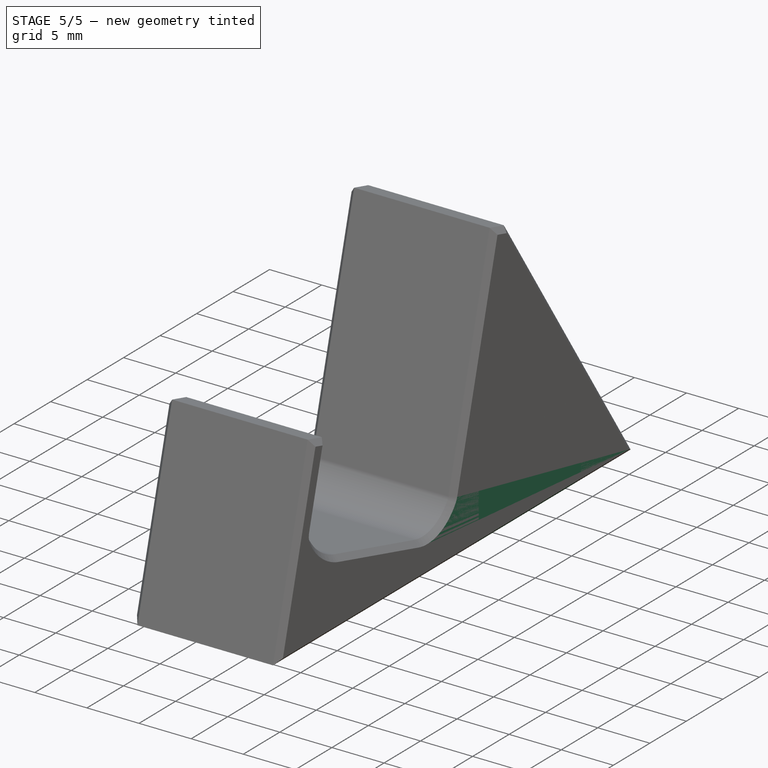
[diagram: stage 5 of 5 — iso view after this stage's code; geometry added in this stage tinted green]
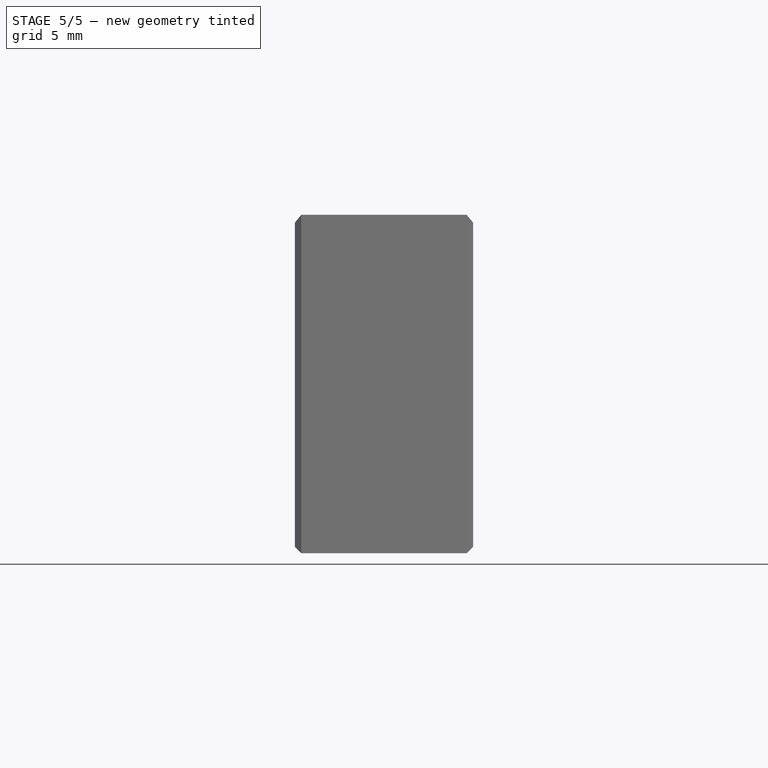
[diagram: stage 5 of 5 — front view after this stage's code; geometry added in this stage tinted green]
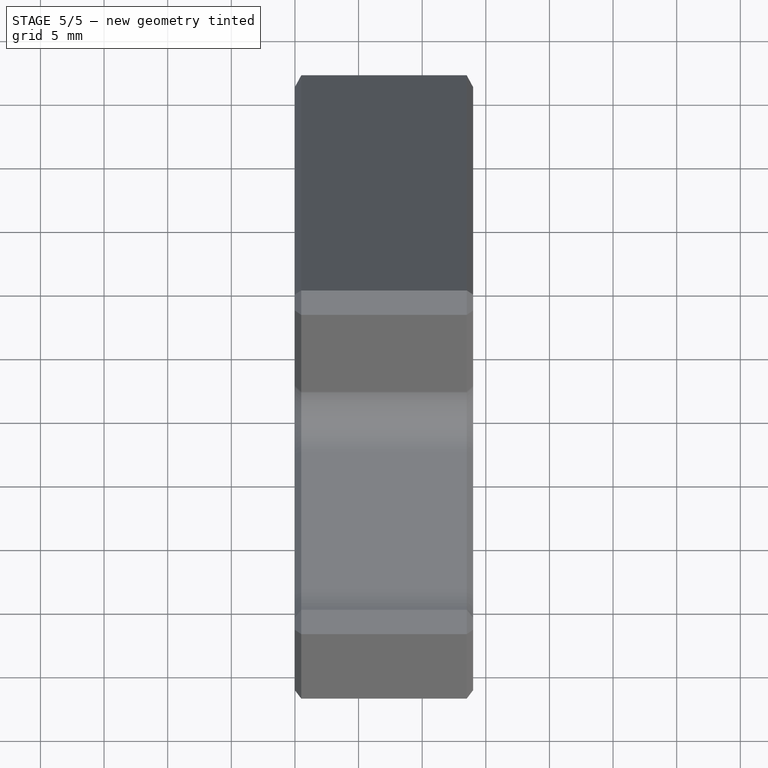
[diagram: stage 5 of 5 — top view after this stage's code; geometry added in this stage tinted green]
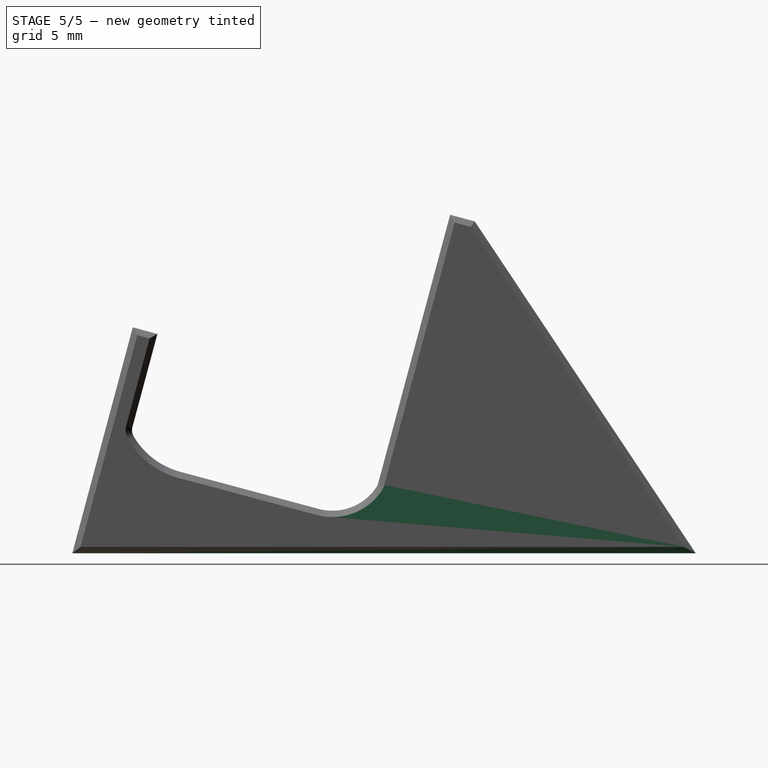
[diagram: stage 5 of 5 — right view after this stage's code; geometry added in this stage tinted green]
FEATURE [Sketcher::SketchObject] Sketch008
  ArcFitTolerance = 0
  AttachmentSupport = -> [Pad001]
  ExternalGeometry = -> [Pad001]
  ExternalTypes = [0]
  FullyConstrained = true
  MakeInternals = false
  MapMode = 5
  Placement = pos=(1.2e-15,0,0) rot=(0.519988,-0.677661,-0.519988;1.95044rad)
  sketch-geometry (8):
    g0: LineSegment StartX=-34.7068 StartY=15.0869 StartZ=0 EndX=-25.8203 EndY=12.7058 EndZ=0
    g1: LineSegment StartX=-25.8203 StartY=12.7058 StartZ=0 EndX=-26.7261 EndY=9.32503 EndZ=0
    g2: LineSegment StartX=-26.7261 StartY=9.32503 StartZ=0 EndX=-35.6127 EndY=11.7062 EndZ=0
    g3: LineSegment StartX=-35.6127 StartY=11.7062 StartZ=0 EndX=-34.7068 EndY=15.0869 EndZ=0
    g4: LineSegment StartX=-38.2891 StartY=9.05867 StartZ=0 EndX=-25.732 EndY=5.69402 EndZ=0
    g5: LineSegment StartX=-25.732 StartY=5.69402 StartZ=0 EndX=-27.0261 EndY=0.86439 EndZ=0
    g6: LineSegment StartX=-27.0261 StartY=0.86439 StartZ=0 EndX=-39.5832 EndY=4.22904 EndZ=0
    g7: LineSegment StartX=-39.5832 StartY=4.22904 StartZ=0 EndX=-38.2891 EndY=9.05867 EndZ=0
  constraints (16):
    c: Coincident(g-3,g0)
    c: Coincident(g0,g-4)
    c: Coincident(g0,g1)
    c: Coincident(g1,g-4)
    c: Coincident(g1,g2)
    c: Coincident(g2,g-3)
    c: Coincident(g2,g3)
    c: Coincident(g3,g0)
    c: Coincident(g-6,g4)
    c: Coincident(g4,g-5)
    c: Coincident(g4,g5)
    c: Coincident(g5,g-5)
    c: Coincident(g5,g6)
    c: Coincident(g6,g-6)
    c: Coincident(g6,g7)
    c: Coincident(g7,g4)
FEATURE [PartDesign::Pad] Pad002
  BaseFeature = -> Pad001
  Direction = (-1,-1e-16,1e-16)
  Length = 14
  Length2 = 10
  Placement = pos=(0,0,0) rot=(-1,0,0;0.261799rad)
  Profile = -> Sketch008
  ReferenceAxis = -> Sketch008 [N_Axis]
  Refine = true
  Reversed = true
  SideType = 0
  Suppressed = false
  Type = 0
  Type2 = 0
FEATURE [PartDesign::Pocket] Pocket001
  BaseFeature = -> Pad002
  Direction = (0,1e-16,1)
  Length = 0
  Length2 = 5
  Offset = 0.5
  Placement = pos=(0,0,0) rot=(-1,0,0;0.261799rad)
  Profile = -> Sketch003
  ReferenceAxis = -> Sketch003 [N_Axis]
  SideType = 0
  Suppressed = false
  Type = 3
  Type2 = 0
  UpToFace = -> Pad002 [Face130]
FEATURE [PartDesign::Pocket] Pocket002
  BaseFeature = -> Pocket001
  Direction = (0,1e-16,1)
  Length = 0
  Length2 = 5
  Offset = 0.5
  Placement = pos=(0,0,0) rot=(-1,0,0;0.261799rad)
  Profile = -> Sketch004
  ReferenceAxis = -> Sketch004 [N_Axis]
  SideType = 0
  Suppressed = false
  Type = 3
  Type2 = 0
  UpToFace = -> Pocket001 [Face117]
FEATURE [Sketcher::SketchObject] Sketch010
  ArcFitTolerance = 0
  AttachmentSupport = -> [Pocket005]
  ExternalGeometry = -> [Pocket005]
  ExternalTypes = [0]
  FullyConstrained = true
  MakeInternals = false
  MapMode = 5
  Placement = pos=(1.2e-15,0,0) rot=(0.519988,-0.677661,-0.519988;1.95044rad)
  sketch-geometry (4):
    g0: LineSegment StartX=-34.7068 StartY=15.0869 StartZ=0 EndX=-25.8203 EndY=12.7058 EndZ=0
    g1: LineSegment StartX=-25.8203 StartY=12.7058 StartZ=0 EndX=-26.7261 EndY=9.32503 EndZ=0
    g2: LineSegment StartX=-26.7261 StartY=9.32503 StartZ=0 EndX=-35.6127 EndY=11.7062 EndZ=0
    g3: LineSegment StartX=-35.6127 StartY=11.7062 StartZ=0 EndX=-34.7068 EndY=15.0869 EndZ=0
  constraints (8):
    c: Coincident(g-3,g0)
    c: Coincident(g0,g-4)
    c: Coincident(g0,g1)
    c: Coincident(g1,g-4)
    c: Coincident(g1,g2)
    c: Coincident(g2,g-3)
    c: Coincident(g2,g3)
    c: Coincident(g3,g0)
FEATURE [App::Point] Origin005  label="Origin"
  Role = Origin
FEATURE [App::Point] Origin006  label="Origin"
  Role = Origin
FEATURE [App::Point] Origin007  label="Origin"
  Role = Origin
FEATURE [App::Point] Origin008  label="Origin"
  Role = Origin
FEATURE [App::Point] Origin009  label="Origin"
  Role = Origin
FEATURE [PartDesign::Chamfer] Chamfer
  Angle = 45
  Base = -> Pocket002 [Face4,Face2]
  BaseFeature = -> Pocket002
  ChamferType = 0
  FlipDirection = false
  Placement = pos=(0,0,0) rot=(-1,0,0;0.261799rad)
  Refine = true
  Size = 0.5
  Size2 = 1
  SupportTransform = false
  Suppressed = false
  UseAllEdges = false
FEATURE [PartDesign::Chamfer] Chamfer001
  Angle = 45
  Base = -> Pocket010 [Face5,Face2]
  BaseFeature = -> Pocket010
  ChamferType = 0
  FlipDirection = false
  Placement = pos=(0,0,0) rot=(-1,0,0;0.261799rad)
  Refine = true
  Size = 0.5
  Size2 = 1
  SupportTransform = false
  Suppressed = false
  UseAllEdges = false
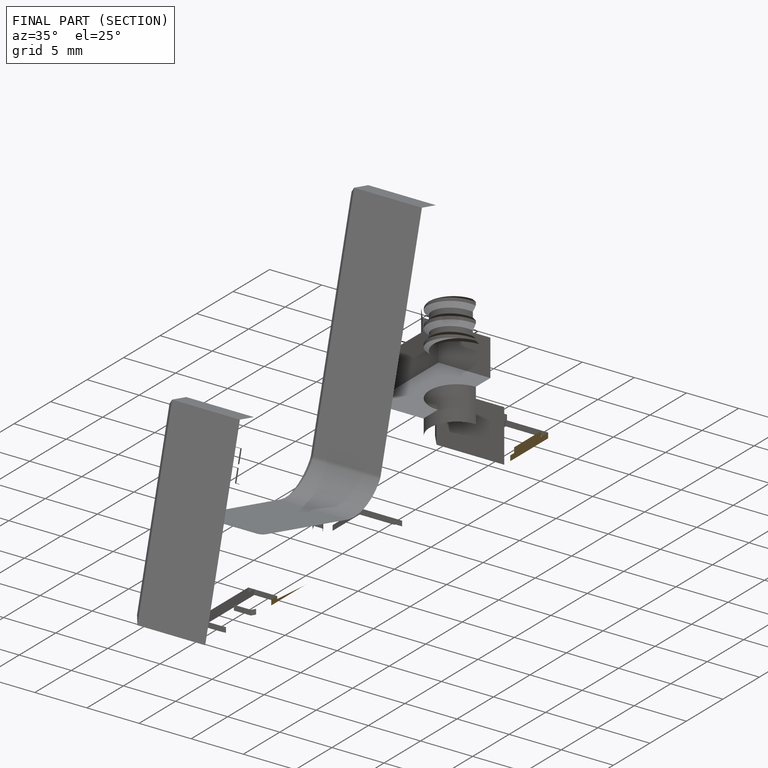
[diagram: finished part — half-section view (interior)]
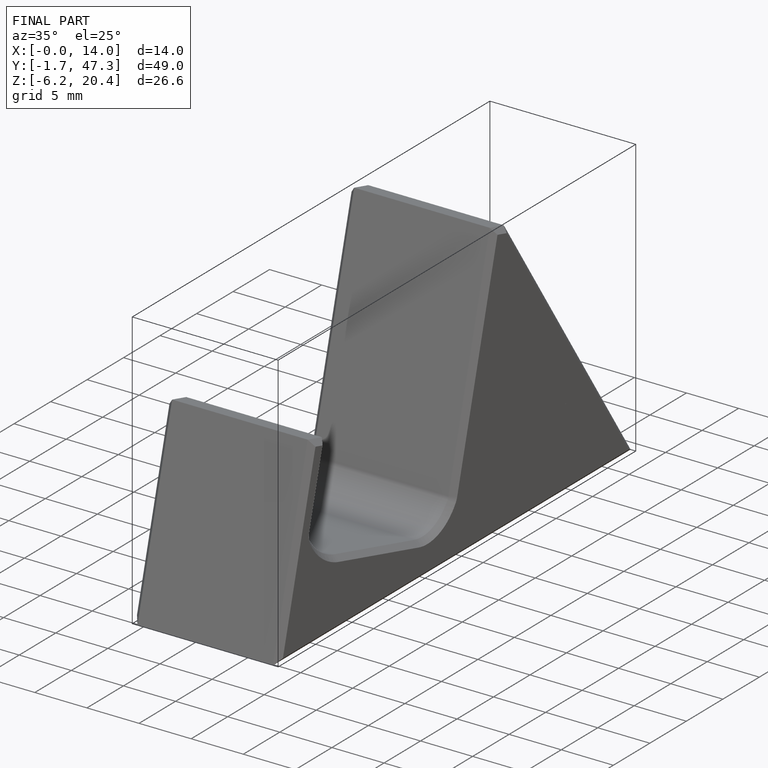
[diagram: finished part — iso view with bounding-box wireframe]
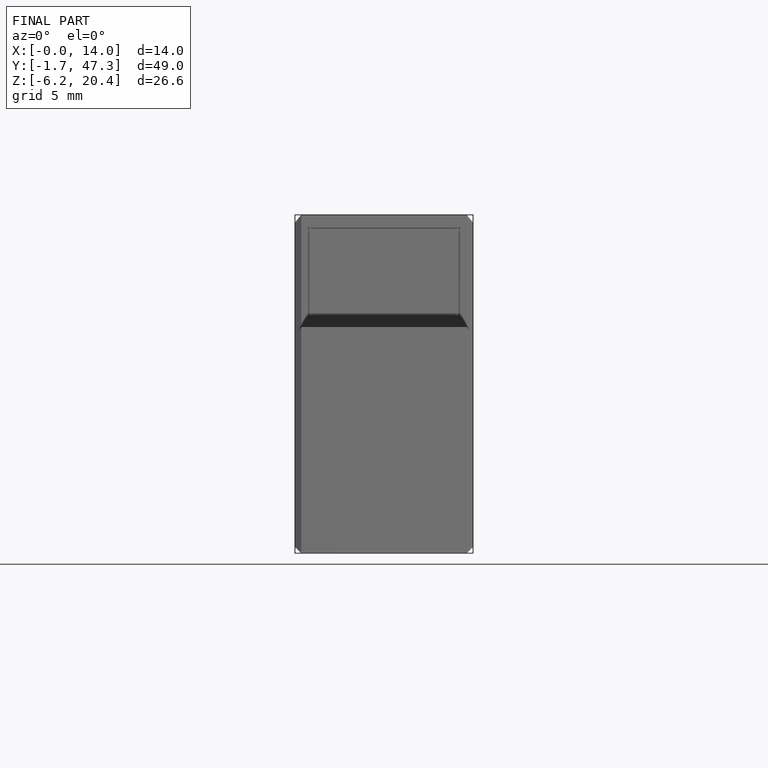
[diagram: finished part — front view with bounding-box wireframe]
